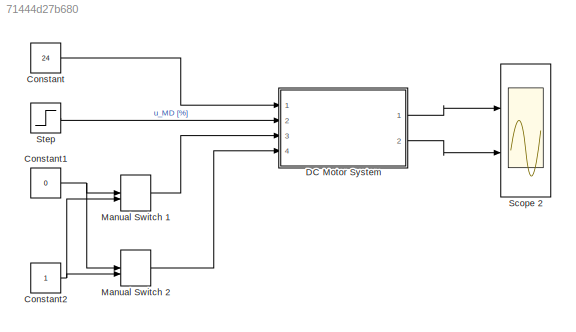
MODEL slx_71444d27b680
KIND model
CONFIG AbsTol = auto
CONFIG EnableMultiTasking = off
CONFIG FixedStep = 0.05
CONFIG MaxStep = auto
CONFIG MinStep = auto
CONFIG RelTol = 1e-3
CONFIG SampleTimeConstraint = Unconstrained
CONFIG SolverName = ode4
CONFIG StartTime = 0.0
CONFIG StopTime = 10.0
BLOCK [Constant] Constant
  Value = 24
BLOCK [Constant] Constant1
  Value = 0
BLOCK [Constant] Constant2
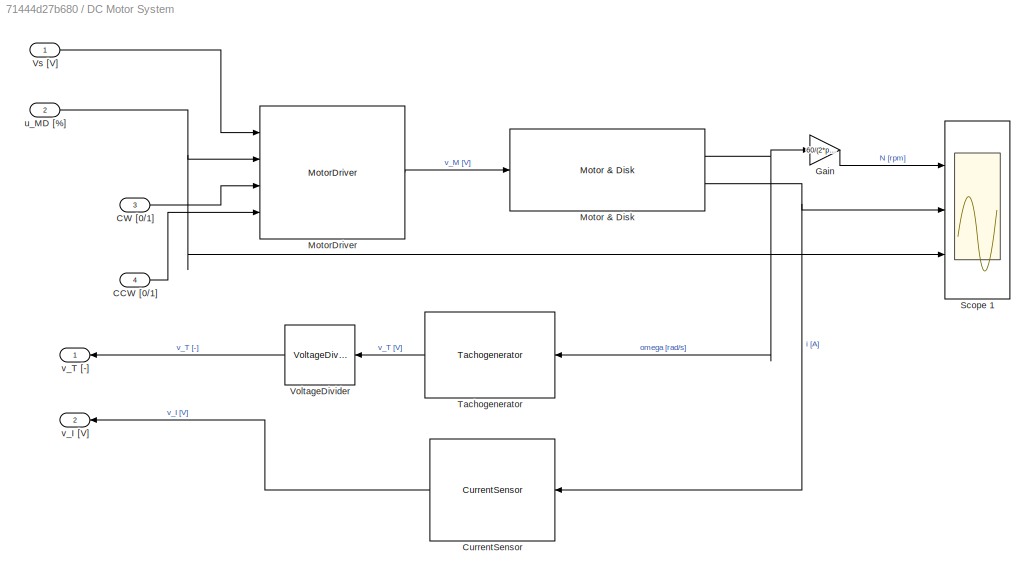
BLOCK [SubSystem] DC Motor System
  Ports = [4, 2]
  RequestExecContextInheritance = off
BLOCK [Inport] DC Motor System/CCW [0//1]
  Port = 4
BLOCK [Inport] DC Motor System/CW [0//1]
  Port = 3
BLOCK [Reference] DC Motor System/CurrentSensor   REF=MBDLib_2020/Sensor/CurrentSensor
  Ports = [1, 1]
  SourceBlock = MBDLib_2020/Sensor/CurrentSensor
  SourceProductName = MBDLibrary
  SourceType = CurrentSensorModel
BLOCK [Gain] DC Motor System/Gain
  Gain = 60/(2*pi)
BLOCK [Reference] DC Motor System/Motor & Disk   REF=MBDLib_2020/Plant/Motor & Disk
  Ports = [1, 2]
  SourceBlock = MBDLib_2020/Plant/Motor & Disk
  SourceProductName = MBDLibrary
  SourceType = DCMotor&DiskModel
BLOCK [Reference] DC Motor System/MotorDriver   REF=MBDLib_2020/Actuator/MotorDriver
  Ports = [4, 1]
  SourceBlock = MBDLib_2020/Actuator/MotorDriver
  SourceProductName = MBDLibrary
  SourceType = MotorDriverModel
BLOCK [Scope] DC Motor System/Scope 1
  Floating = off
  NumInputPorts = 3
  Ports = [3]
  ScopeSpecificationString = Simulink.scopes.TimeScopeBlockCfg('CurrentConfiguration', extmgr.ConfigurationSet(extmgr.Configuration('Core','General UI',true),extmgr.Configuration('Core','Source UI',true),extmgr.Configuration('Sources','WiredSimulink',true),extmgr.Configuration('Visuals','Time Domain',true,'SerializedDisplays',{struct('MinYLimReal','-372.58747','MaxYLimReal','3353.28719','YLabelReal','','MinYLimMag',' 0.00000'...<+2676ch>
BLOCK [Reference] DC Motor System/Tachogenerator   REF=MBDLib_2020/Sensor/Tachogenerator
  Ports = [1, 1]
  SourceBlock = MBDLib_2020/Sensor/Tachogenerator
  SourceProductName = MBDLibrary
  SourceType = TachoGeneratorModel
BLOCK [Reference] DC Motor System/VoltageDivider  REF=MBDLib_2020/Sensor/VoltageDivider
  Ports = [1, 1]
  SourceBlock = MBDLib_2020/Sensor/VoltageDivider
  SourceProductName = MBDLibrary
BLOCK [Inport] DC Motor System/Vs [V]
BLOCK [Inport] DC Motor System/u_MD [%]
  Port = 2
BLOCK [Outport] DC Motor System/v_I [V]
  Port = 2
BLOCK [Outport] DC Motor System/v_T [-]
BLOCK [ManualSwitch] Manual Switch 1 
  CurrentSetting = 0
BLOCK [ManualSwitch] Manual Switch 2
BLOCK [Scope] Scope 2
  Floating = off
  NumInputPorts = 2
  Ports = [2]
  ScopeSpecificationString = Simulink.scopes.TimeScopeBlockCfg('CurrentConfiguration', extmgr.ConfigurationSet(extmgr.Configuration('Core','General UI',true),extmgr.Configuration('Core','Source UI',true),extmgr.Configuration('Sources','WiredSimulink',true,'DataLoggingVariableName','ScopeData1'),extmgr.Configuration('Visuals','Time Domain',true,'SerializedDisplays',{struct('MinYLimReal','-0.55888','MaxYLimReal','5.02993','YLab...<+2048ch>
BLOCK [Step] Step
  After = 100
  SampleTime = 0
NET Constant1:1 -> Manual Switch 1 :1, Manual Switch 2:1
NET Constant2:1 -> Manual Switch 1 :2, Manual Switch 2:2
LINE Constant:1 -> DC Motor System:1
LINE DC Motor System/CCW [0//1]:1 -> DC Motor System/MotorDriver :4
LINE DC Motor System/CW [0//1]:1 -> DC Motor System/MotorDriver :3
LINE DC Motor System/CurrentSensor :1 -> DC Motor System/v_I [V]:1
LINE DC Motor System/Gain:1 -> DC Motor System/Scope 1:1
NET DC Motor System/Motor & Disk :1 -> DC Motor System/Gain:1, DC Motor System/Tachogenerator :1
NET DC Motor System/Motor & Disk :2 -> DC Motor System/CurrentSensor :1, DC Motor System/Scope 1:2
LINE DC Motor System/MotorDriver :1 -> DC Motor System/Motor & Disk :1
LINE DC Motor System/Tachogenerator :1 -> DC Motor System/VoltageDivider:1
LINE DC Motor System/VoltageDivider:1 -> DC Motor System/v_T [-]:1
LINE DC Motor System/Vs [V]:1 -> DC Motor System/MotorDriver :1
NET DC Motor System/u_MD [%]:1 -> DC Motor System/MotorDriver :2, DC Motor System/Scope 1:3
LINE DC Motor System:1 -> Scope 2:1
LINE DC Motor System:2 -> Scope 2:2
LINE Manual Switch 1 :1 -> DC Motor System:3
LINE Manual Switch 2:1 -> DC Motor System:4
LINE Step:1 -> DC Motor System:2
note: NET lines group one-source signal fan-out (src -> all destinations, sorted); 1:1 wires keep LINE
